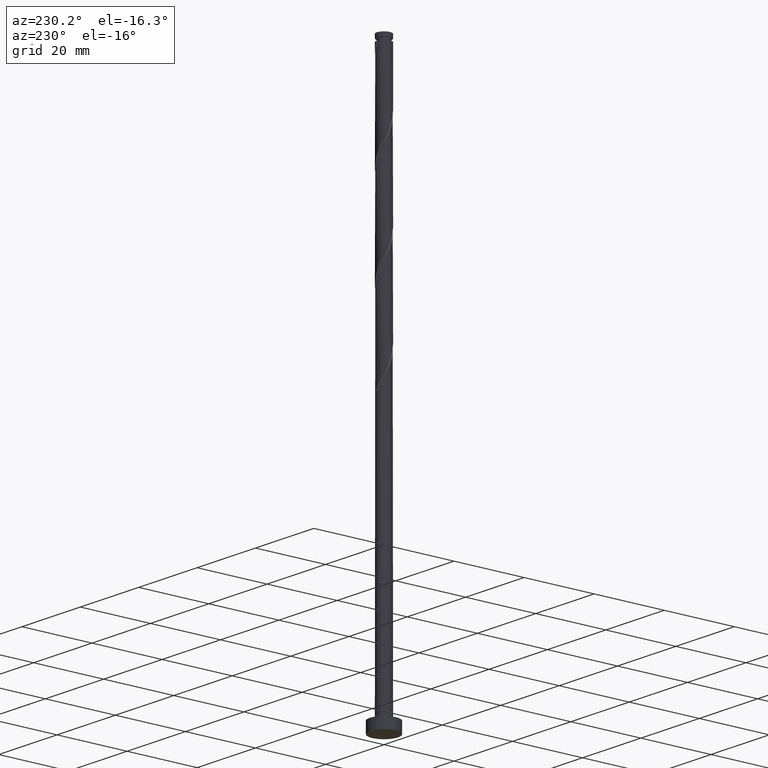
[diagram: clean part render]
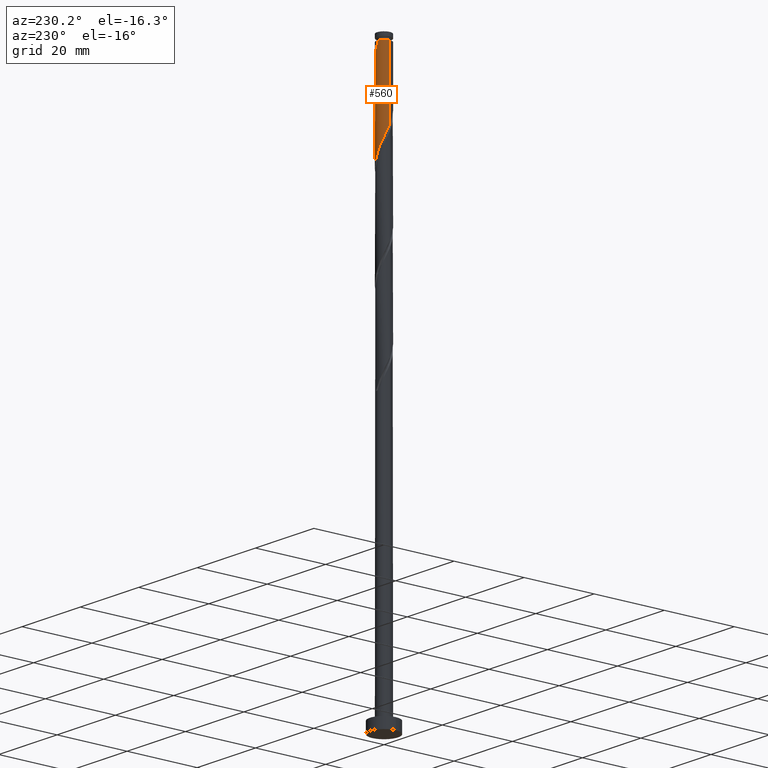
[diagram: same view with one face highlighted and labeled with its STEP entity id]
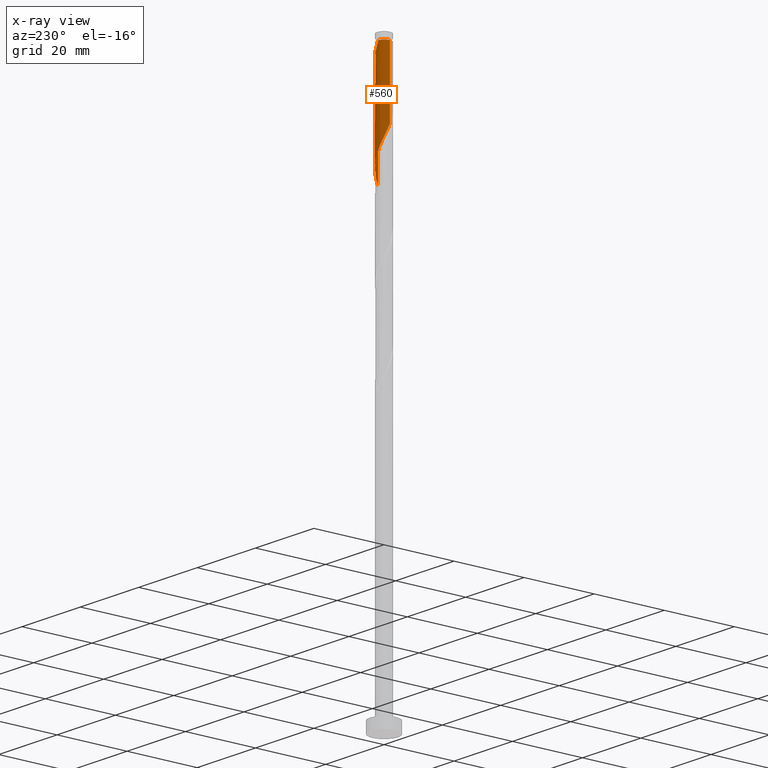
[diagram: x-ray of the same camera — body ghosted, the highlighted face saturated]
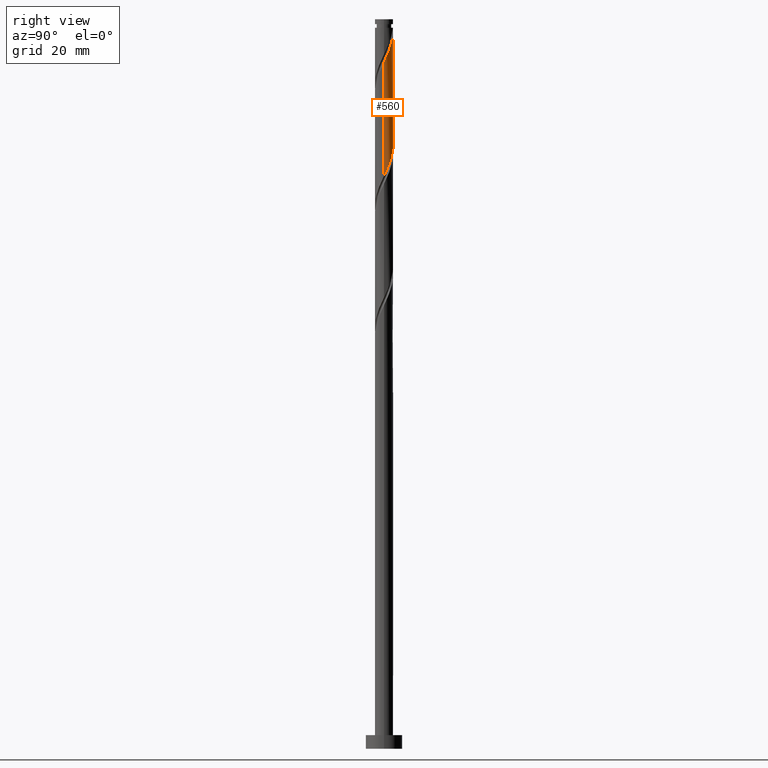
[diagram: same view with one face highlighted and labeled with its STEP entity id]
A machine part, auxiliary view. The second image highlights one B-rep face of the part: STEP entity #560.
The next image is the same camera in x-ray: the body ghosted, the highlighted face saturated — about 0% of this face is hidden behind the body in this view.
A second angle (right view) of the same face is appended — the face is thin or edge-on in the first view.
In plain terms, the highlighted cylindrical surface (edge-blend (fillet) strip) has radius 2 mm, axis along (-0, -0, -1).
Its self-contained STEP definition (entity closure, byte-faithful):
#2 = VERTEX_POINT ( 'NONE', #1238 ) ;
#7 = CARTESIAN_POINT ( 'NONE',  ( 0.1161895186125005142, 2.017223038501447796, 132.0526647685990156 ) ) ;
#16 = CARTESIAN_POINT ( 'NONE',  ( 1.883409435608319749, 0.6728810428757547868, 152.0526647685990156 ) ) ;
#24 = CARTESIAN_POINT ( 'NONE',  ( 1.188337955536407531, 1.634179211325358594, 129.6284223443565793 ) ) ;
#26 = CARTESIAN_POINT ( 'NONE',  ( 2.000000000000003553, 1.181588835576204861E-15, 150.5971496832376033 ) ) ;
#36 = CARTESIAN_POINT ( 'NONE',  ( 1.617545623245915332, 1.176242388590887922, 153.2647859807202053 ) ) ;
#37 = EDGE_CURVE ( 'NONE', #862, #848, #1083, .T. ) ;
#54 = VERTEX_POINT ( 'NONE', #1222 ) ;
#87 = CARTESIAN_POINT ( 'NONE',  ( -1.996690616564939846, 0.1150068768444770378, 138.7193314352656444 ) ) ;
#131 = ORIENTED_EDGE ( 'NONE', *, *, #907, .T. ) ;
#155 = CARTESIAN_POINT ( 'NONE',  ( 0.9928482695149684067, 1.759812803970230766, 155.0829677989020752 ) ) ;
#231 = CARTESIAN_POINT ( 'NONE',  ( -2.000000000000000000, -3.746683586225840659E-15, 138.9627253085059522 ) ) ;
#259 = EDGE_LOOP ( 'NONE', ( #457, #131, #773, #1533, #561 ) ) ;
#262 = LINE ( 'NONE', #600, #1145 ) ;
#287 = CARTESIAN_POINT ( 'NONE',  ( 1.448427499289744791, 1.408810338760221326, 153.8708465867808854 ) ) ;
#294 = CARTESIAN_POINT ( 'NONE',  ( 1.948211798543800555, 0.4521844623765070570, 126.5981193140535481 ) ) ;
#295 = CARTESIAN_POINT ( 'NONE',  ( 1.980155124014554291, 0.4020876473299551113, 151.4466041625385060 ) ) ;
#355 = CARTESIAN_POINT ( 'NONE',  ( -1.617545623245911779, 1.176242388590886812, 136.2950890110232365 ) ) ;
#359 = DIRECTION ( 'NONE',  ( -0.000000000000000000, -0.000000000000000000, -1.000000000000000000 ) ) ;
#372 = EDGE_CURVE ( 'NONE', #876, #2, #1214, .T. ) ;
#383 = CARTESIAN_POINT ( 'NONE',  ( -1.883409435608316418, 0.6728810428757544537, 137.5072102231444546 ) ) ;
#399 = CARTESIAN_POINT ( 'NONE',  ( -0.1703224295138024424, 1.992734370156874713, 132.6587253746596389 ) ) ;
#409 = CARTESIAN_POINT ( 'NONE',  ( -2.000000000000000000, -3.746683586225840659E-15, 138.9627253085059522 ) ) ;
#456 = CARTESIAN_POINT ( 'NONE',  ( 0.000000000000000000, 0.000000000000000000, 160.0000000000000000 ) ) ;
#457 = ORIENTED_EDGE ( 'NONE', *, *, #782, .F. ) ;
#500 = CARTESIAN_POINT ( 'NONE',  ( -2.000000000000000000, 0.05755105304764873697, 138.8406273037876986 ) ) ;
#514 = CARTESIAN_POINT ( 'NONE',  ( 1.394470680848406419, 1.433684595806966167, 129.0223617382959844 ) ) ;
#529 = CARTESIAN_POINT ( 'NONE',  ( 0.6798004310727961963, 1.902776961498551689, 130.8405435564777690 ) ) ;
#537 = CARTESIAN_POINT ( 'NONE',  ( 1.600603406160404418, 1.233189980288572851, 128.4163011322353611 ) ) ;
#555 = CARTESIAN_POINT ( 'NONE',  ( 1.220637884402356654, 1.584311571365226490, 154.4769071928414803 ) ) ;
#560 = ADVANCED_FACE ( 'NONE', ( #1621 ), #1103, .T. ) ;
#561 = ORIENTED_EDGE ( 'NONE', *, *, #372, .T. ) ;
#595 = CARTESIAN_POINT ( 'NONE',  ( -1.448427499289741460, 1.408810338760220215, 135.6890284049626700 ) ) ;
#600 = CARTESIAN_POINT ( 'NONE',  ( -2.000000000000000000, 0.000000000000000000, 160.0000000000000000 ) ) ;
#639 = CARTESIAN_POINT ( 'NONE',  ( 0.3979949748426486189, 1.959999999999999964, 131.4466041625383923 ) ) ;
#655 = CARTESIAN_POINT ( 'NONE',  ( -0.4568343776401056489, 1.968245701812301407, 133.2647859807202622 ) ) ;
#704 = AXIS2_PLACEMENT_3D ( 'NONE', #996, #359, #853 ) ;
#711 = CARTESIAN_POINT ( 'NONE',  ( 2.000000000000000000, -2.221087874469210557E-15, 125.6293919751726094 ) ) ;
#727 = CARTESIAN_POINT ( 'NONE',  ( -1.220637884402354434, 1.584311571365224047, 135.0829677989020183 ) ) ;
#766 = CARTESIAN_POINT ( 'NONE',  ( 0.9340691933046018081, 1.768478086411955141, 130.2344829504172026 ) ) ;
#773 = ORIENTED_EDGE ( 'NONE', *, *, #37, .F. ) ;
#782 = EDGE_CURVE ( 'NONE', #54, #2, #1417, .T. ) ;
#793 = CARTESIAN_POINT ( 'NONE',  ( 2.000000000000000000, 2.449293598294706414E-16, 160.0000000000000000 ) ) ;
#815 = CARTESIAN_POINT ( 'NONE',  ( -1.999999999999993117, 0.000000000000000000, 158.1132708292050779 ) ) ;
#848 = VERTEX_POINT ( 'NONE', #1290 ) ;
#853 = DIRECTION ( 'NONE',  ( -1.000000000000000000, 0.000000000000000000, 0.000000000000000000 ) ) ;
#862 = VERTEX_POINT ( 'NONE', #409 ) ;
#876 = VERTEX_POINT ( 'NONE', #815 ) ;
#889 = CARTESIAN_POINT ( 'NONE',  ( -0.9928482695149674075, 1.759812803970227657, 134.4769071928414519 ) ) ;
#907 = EDGE_CURVE ( 'NONE', #54, #848, #1041, .T. ) ;
#915 = CARTESIAN_POINT ( 'NONE',  ( 1.786663747202085650, 0.9436744384215544068, 152.6587253746597241 ) ) ;
#937 = CARTESIAN_POINT ( 'NONE',  ( 0.7248413235775374996, 1.864029252891266975, 155.6890284049626416 ) ) ;
#963 = VECTOR ( 'NONE', #1555, 1000.000000000000000 ) ;
#978 = CARTESIAN_POINT ( 'NONE',  ( -1.980155124014550738, 0.4020876473299552223, 138.1132708292051063 ) ) ;
#979 = DIRECTION ( 'NONE',  ( -1.000000000000000000, 0.000000000000000000, 0.000000000000000000 ) ) ;
#996 = CARTESIAN_POINT ( 'NONE',  ( 0.000000000000000000, 0.000000000000000000, 158.1132708292050779 ) ) ;
#1008 = DIRECTION ( 'NONE',  ( -0.000000000000000000, -0.000000000000000000, -1.000000000000000000 ) ) ;
#1040 = CARTESIAN_POINT ( 'NONE',  ( 1.741900447066337732, 0.9827425057002940889, 127.8102405261748089 ) ) ;
#1041 = LINE ( 'NONE', #793, #963 ) ;
#1065 = CARTESIAN_POINT ( 'NONE',  ( 0.4568343776401068701, 1.968245701812304072, 156.2950890110232933 ) ) ;
#1083 =( BOUNDED_CURVE ( )  B_SPLINE_CURVE ( 2, ( #231, #500, #87, #978, #383, #1485, #355, #595, #727, #889, #1661, #655, #399, #7, #639, #529, #766, #24, #514, #537, #1040, #1553, #294, #1652, #711 ),
 .UNSPECIFIED., .F., .T. ) 
 B_SPLINE_CURVE_WITH_KNOTS ( ( 3, 2, 2, 2, 2, 2, 2, 2, 2, 2, 2, 2, 3 ),
 ( 0.4295252162417514952, 0.4318181818181818232, 0.4431818181818181768, 0.4545454545454545303, 0.4659090909090908839, 0.4772727272727272929, 0.4886363636363636465, 0.5000000000000000000, 0.5113636363636363535, 0.5227272727272727071, 0.5340909090909090606, 0.5454545454545454142, 0.5545252162417513286 ),
 .UNSPECIFIED. ) 
 CURVE ( )  GEOMETRIC_REPRESENTATION_ITEM ( )  RATIONAL_B_SPLINE_CURVE ( ( 0.9061101570135633443, 0.9072237824201454526, 0.9090909090909228274, 0.8998376744372251768, 0.9090909090909228274, 0.8998376744372251768, 0.9090909090909228274, 0.8998376744372251768, 0.9090909090909228274, 0.8998376744372251768, 0.9090909090909228274, 0.8998376744372251768, 0.9090909090909228274, 0.8998376744372251768, 0.9090909090909228274, 0.8998376744372251768, 0.9090909090909228274, 0.8998376744372251768, 0.9090909090909228274, 0.8998376744372251768, 0.9090909090909228274, 0.8998376744372251768, 0.9090909090909228274, 0.9017048011080026626, 0.9061101570135631222 ) ) 
 REPRESENTATION_ITEM ( '' )  );
#1103 = CYLINDRICAL_SURFACE ( 'NONE', #1198, 2.000000000000000000 ) ;
#1145 = VECTOR ( 'NONE', #1008, 1000.000000000000000 ) ;
#1177 = CARTESIAN_POINT ( 'NONE',  ( 2.000000000000003553, 0.05755105304765427421, 150.7192476879558569 ) ) ;
#1198 = AXIS2_PLACEMENT_3D ( 'NONE', #456, #1209, #979 ) ;
#1209 = DIRECTION ( 'NONE',  ( -0.000000000000000000, -0.000000000000000000, -1.000000000000000000 ) ) ;
#1214 = CIRCLE ( 'NONE', #704, 1.999999999999993117 ) ;
#1222 = CARTESIAN_POINT ( 'NONE',  ( 2.000000000000003553, 1.181588835576204861E-15, 150.5971496832376033 ) ) ;
#1238 = CARTESIAN_POINT ( 'NONE',  ( -0.3979949748426481193, 1.960000000000003739, 158.1132708292050779 ) ) ;
#1290 = CARTESIAN_POINT ( 'NONE',  ( 2.000000000000000000, -2.221087874469210557E-15, 125.6293919751726094 ) ) ;
#1312 = CARTESIAN_POINT ( 'NONE',  ( -0.3979949748426481193, 1.960000000000003739, 158.1132708292050495 ) ) ;
#1395 = EDGE_CURVE ( 'NONE', #876, #862, #262, .T. ) ;
#1412 = CARTESIAN_POINT ( 'NONE',  ( 0.1703224295138033029, 1.992734370156877821, 156.9011496170838598 ) ) ;
#1417 =( BOUNDED_CURVE ( )  B_SPLINE_CURVE ( 2, ( #26, #1177, #1420, #295, #16, #915, #36, #287, #555, #155, #937, #1065, #1412, #1440, #1312 ),
 .UNSPECIFIED., .F., .T. ) 
 B_SPLINE_CURVE_WITH_KNOTS ( ( 3, 2, 2, 2, 2, 2, 2, 3 ),
 ( 0.6795252162417517727, 0.6818181818181818787, 0.6931818181818181213, 0.7045454545454546968, 0.7159090909090909394, 0.7272727272727274039, 0.7386363636363638685, 0.7500000000000002220 ),
 .UNSPECIFIED. ) 
 CURVE ( )  GEOMETRIC_REPRESENTATION_ITEM ( )  RATIONAL_B_SPLINE_CURVE ( ( 0.9061101570135697836, 0.9072237824201518919, 0.9090909090909291557, 0.8998376744372313940, 0.9090909090909291557, 0.8998376744372313940, 0.9090909090909291557, 0.8998376744372313940, 0.9090909090909291557, 0.8998376744372313940, 0.9090909090909291557, 0.8998376744372313940, 0.9090909090909291557, 0.8998376744372311720, 0.9090909090909293777 ) ) 
 REPRESENTATION_ITEM ( '' )  );
#1420 = CARTESIAN_POINT ( 'NONE',  ( 1.996690616564943399, 0.1150068768444764550, 150.8405435564778827 ) ) ;
#1440 = CARTESIAN_POINT ( 'NONE',  ( -0.1161895186125056906, 2.017223038501451793, 157.5072102231445399 ) ) ;
#1485 = CARTESIAN_POINT ( 'NONE',  ( -1.786663747202081876, 0.9436744384215539627, 136.9011496170838598 ) ) ;
#1533 = ORIENTED_EDGE ( 'NONE', *, *, #1395, .F. ) ;
#1553 = CARTESIAN_POINT ( 'NONE',  ( 1.883197487972272155, 0.7322950311120131062, 127.2041799201141572 ) ) ;
#1555 = DIRECTION ( 'NONE',  ( -0.000000000000000000, -0.000000000000000000, -1.000000000000000000 ) ) ;
#1621 = FACE_OUTER_BOUND ( 'NONE', #259, .T. ) ;
#1652 = CARTESIAN_POINT ( 'NONE',  ( 2.000000000000000000, 0.2290578547702440404, 126.1153519281439372 ) ) ;
#1661 = CARTESIAN_POINT ( 'NONE',  ( -0.7248413235775363894, 1.864029252891264754, 133.8708465867808286 ) ) ;